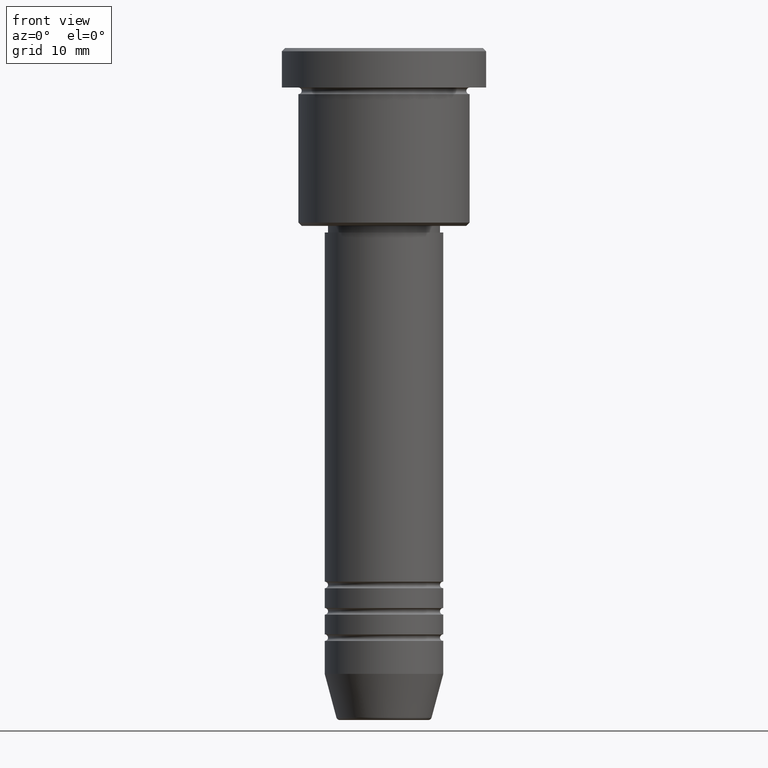
[diagram: clean part render]
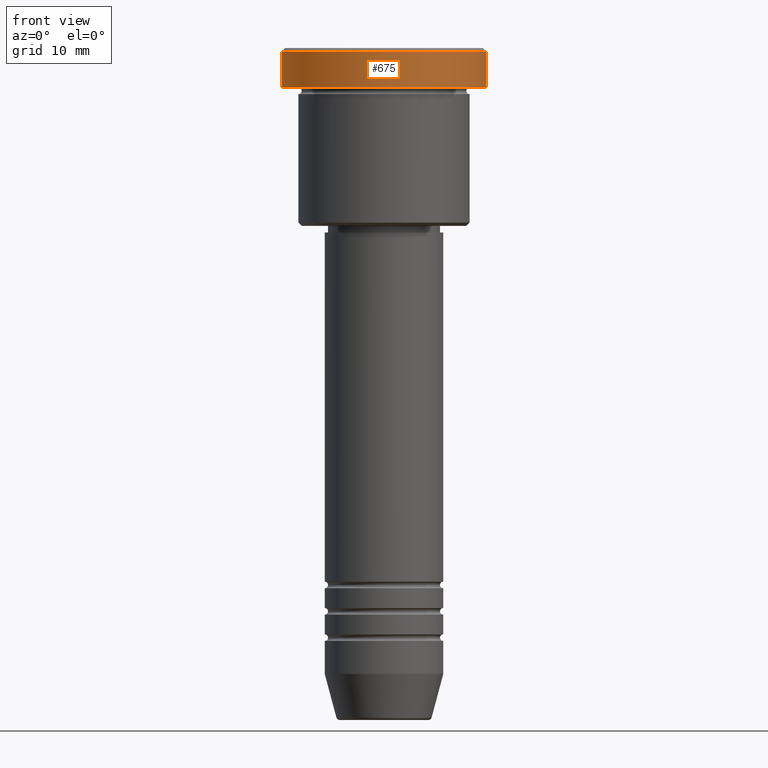
[diagram: same view with one face highlighted and labeled with its STEP entity id]
A machine part, front view. The second image highlights one B-rep face of the part: STEP entity #675.
In plain terms, the highlighted cylindrical surface (partial cylindrical patch) has radius 15.5 mm, axis along (-0, -0, 1).
Its self-contained STEP definition (entity closure, byte-faithful):
#56 = CARTESIAN_POINT ( 'NONE',  ( 0.000000000000000000, 0.000000000000000000, -0.4999999999999987232 ) ) ;
#108 = DIRECTION ( 'NONE',  ( 1.000000000000000000, 0.000000000000000000, 0.000000000000000000 ) ) ;
#126 = DIRECTION ( 'NONE',  ( -0.000000000000000000, -0.000000000000000000, 1.000000000000000000 ) ) ;
#158 = VECTOR ( 'NONE', #214, 1000.000000000000000 ) ;
#214 = DIRECTION ( 'NONE',  ( -0.000000000000000000, -0.000000000000000000, 1.000000000000000000 ) ) ;
#245 = CARTESIAN_POINT ( 'NONE',  ( -15.50000000000000000, 1.898202538678397557E-15, -0.4999999999999987232 ) ) ;
#330 = DIRECTION ( 'NONE',  ( -0.000000000000000000, -0.000000000000000000, 1.000000000000000000 ) ) ;
#333 = DIRECTION ( 'NONE',  ( 1.000000000000000000, 0.000000000000000000, 0.000000000000000000 ) ) ;
#365 = EDGE_CURVE ( 'NONE', #795, #900, #1146, .T. ) ;
#371 = CIRCLE ( 'NONE', #1154, 15.50000000000000000 ) ;
#377 = VERTEX_POINT ( 'NONE', #245 ) ;
#378 = CARTESIAN_POINT ( 'NONE',  ( 0.000000000000000000, 0.000000000000000000, 0.000000000000000000 ) ) ;
#388 = EDGE_LOOP ( 'NONE', ( #852, #1040, #558, #829 ) ) ;
#410 = VERTEX_POINT ( 'NONE', #797 ) ;
#506 = DIRECTION ( 'NONE',  ( -0.000000000000000000, -0.000000000000000000, 1.000000000000000000 ) ) ;
#532 = EDGE_CURVE ( 'NONE', #410, #795, #966, .T. ) ;
#558 = ORIENTED_EDGE ( 'NONE', *, *, #365, .T. ) ;
#617 = CARTESIAN_POINT ( 'NONE',  ( 15.50000000000000000, 0.000000000000000000, 0.000000000000000000 ) ) ;
#668 = AXIS2_PLACEMENT_3D ( 'NONE', #882, #330, #960 ) ;
#675 = ADVANCED_FACE ( 'NONE', ( #835 ), #1022, .T. ) ;
#718 = CARTESIAN_POINT ( 'NONE',  ( 15.50000000000000000, 0.000000000000000000, -0.4999999999999987232 ) ) ;
#795 = VERTEX_POINT ( 'NONE', #950 ) ;
#797 = CARTESIAN_POINT ( 'NONE',  ( -15.50000000000000000, 1.898202538678397557E-15, -5.999999999999995559 ) ) ;
#829 = ORIENTED_EDGE ( 'NONE', *, *, #969, .T. ) ;
#835 = FACE_OUTER_BOUND ( 'NONE', #388, .T. ) ;
#852 = ORIENTED_EDGE ( 'NONE', *, *, #884, .F. ) ;
#882 = CARTESIAN_POINT ( 'NONE',  ( 0.000000000000000000, 0.000000000000000000, -5.999999999999995559 ) ) ;
#884 = EDGE_CURVE ( 'NONE', #410, #377, #1107, .T. ) ;
#900 = VERTEX_POINT ( 'NONE', #718 ) ;
#929 = AXIS2_PLACEMENT_3D ( 'NONE', #378, #126, #108 ) ;
#950 = CARTESIAN_POINT ( 'NONE',  ( 15.50000000000000000, 0.000000000000000000, -5.999999999999995559 ) ) ;
#958 = DIRECTION ( 'NONE',  ( 0.000000000000000000, 0.000000000000000000, -1.000000000000000000 ) ) ;
#960 = DIRECTION ( 'NONE',  ( 1.000000000000000000, 0.000000000000000000, 0.000000000000000000 ) ) ;
#966 = CIRCLE ( 'NONE', #668, 15.50000000000000000 ) ;
#969 = EDGE_CURVE ( 'NONE', #900, #377, #371, .T. ) ;
#999 = VECTOR ( 'NONE', #506, 1000.000000000000000 ) ;
#1022 = CYLINDRICAL_SURFACE ( 'NONE', #929, 15.50000000000000000 ) ;
#1028 = CARTESIAN_POINT ( 'NONE',  ( -15.50000000000000000, 1.898202538678397557E-15, 0.000000000000000000 ) ) ;
#1040 = ORIENTED_EDGE ( 'NONE', *, *, #532, .T. ) ;
#1107 = LINE ( 'NONE', #1028, #158 ) ;
#1146 = LINE ( 'NONE', #617, #999 ) ;
#1154 = AXIS2_PLACEMENT_3D ( 'NONE', #56, #958, #333 ) ;